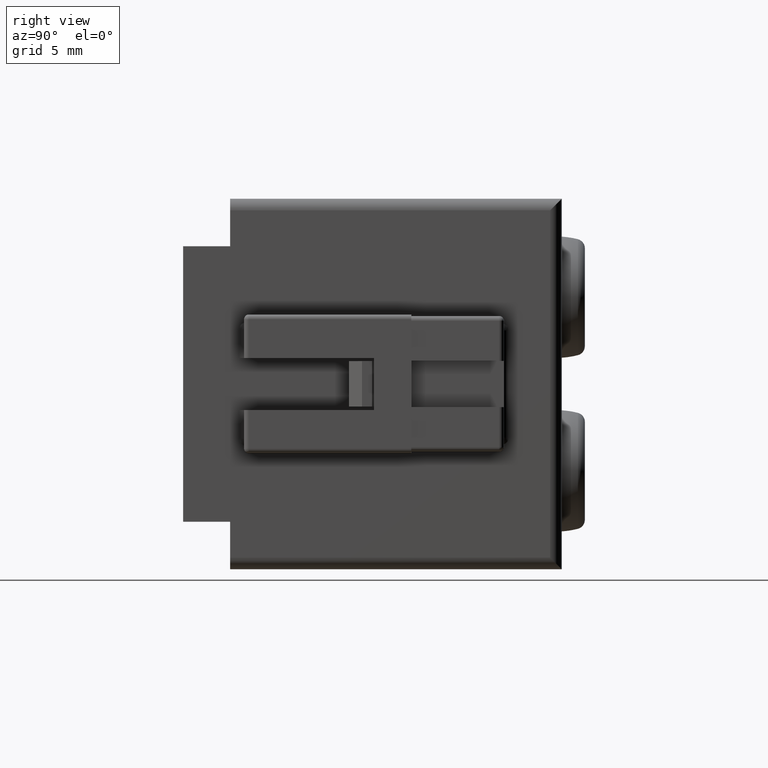
[diagram: clean part render]
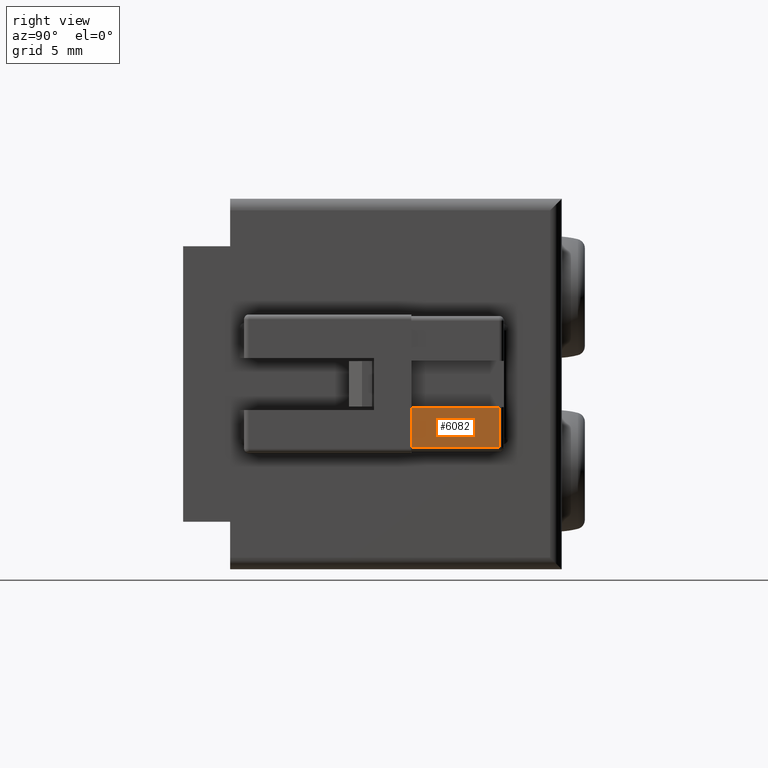
[diagram: same view with one face highlighted and labeled with its STEP entity id]
A machine part, right view. The second image highlights one B-rep face of the part: STEP entity #6082.
In plain terms, the highlighted planar face has unit normal (-1, 0, 0).
Its self-contained STEP definition (entity closure, byte-faithful):
#489 = VECTOR ( 'NONE', #3012, 1000.000000000000000 ) ;
#1009 = AXIS2_PLACEMENT_3D ( 'NONE', #7046, #7026, #7047 ) ;
#1131 = EDGE_CURVE ( 'NONE', #14549, #14533, #3009, .T. ) ;
#3009 = LINE ( 'NONE', #3011, #489 ) ;
#3011 = CARTESIAN_POINT ( 'NONE',  ( 30.10655536988765100, 46.84963753280949600, -12.90616625224570100 ) ) ;
#3012 = DIRECTION ( 'NONE',  ( 0.0000000000000000000, 1.000000000000000000, 2.793185475527755200E-014 ) ) ;
#4847 = VECTOR ( 'NONE', #13942, 1000.000000000000000 ) ;
#4862 = VECTOR ( 'NONE', #14043, 1000.000000000000000 ) ;
#4882 = VECTOR ( 'NONE', #13990, 1000.000000000000000 ) ;
#6082 = ADVANCED_FACE ( 'NONE', ( #7033 ), #7037, .F. ) ;
#7026 = DIRECTION ( 'NONE',  ( -1.000000000000000000, 0.0000000000000000000, 0.0000000000000000000 ) ) ;
#7033 = FACE_OUTER_BOUND ( 'NONE', #12475, .T. ) ;
#7037 = PLANE ( 'NONE',  #1009 ) ;
#7046 = CARTESIAN_POINT ( 'NONE',  ( 30.10655536988765100, 46.84963753280960200, -14.34181132681393900 ) ) ;
#7047 = DIRECTION ( 'NONE',  ( 0.0000000000000000000, 2.094888803305880000E-014, -1.000000000000000000 ) ) ;
#12475 = EDGE_LOOP ( 'NONE', ( #20330, #20336, #20288, #20127 ) ) ;
#13929 = LINE ( 'NONE', #13933, #4847 ) ;
#13933 = CARTESIAN_POINT ( 'NONE',  ( 30.10655536988765100, 40.64963753280950000, -11.17283801961442100 ) ) ;
#13942 = DIRECTION ( 'NONE',  ( 0.0000000000000000000, -2.793185071074504800E-014, 1.000000000000000000 ) ) ;
#13956 = LINE ( 'NONE', #13976, #4882 ) ;
#13976 = CARTESIAN_POINT ( 'NONE',  ( 30.10655536988765100, 46.84963753280949600, -11.17283801961426100 ) ) ;
#13990 = DIRECTION ( 'NONE',  ( 0.0000000000000000000, -1.000000000000000000, -2.793185071074504800E-014 ) ) ;
#14023 = LINE ( 'NONE', #14032, #4862 ) ;
#14032 = CARTESIAN_POINT ( 'NONE',  ( 30.10655536988765100, 36.84963753280954500, -14.34181132681422000 ) ) ;
#14043 = DIRECTION ( 'NONE',  ( 0.0000000000000000000, 2.760654054613580100E-014, -1.000000000000000000 ) ) ;
#14522 = VERTEX_POINT ( 'NONE', #17602 ) ;
#14533 = VERTEX_POINT ( 'NONE', #17612 ) ;
#14549 = VERTEX_POINT ( 'NONE', #17631 ) ;
#14555 = VERTEX_POINT ( 'NONE', #17604 ) ;
#17602 = CARTESIAN_POINT ( 'NONE',  ( 30.10655536988765100, 36.84963753280829500, -11.17283801961442100 ) ) ;
#17604 = CARTESIAN_POINT ( 'NONE',  ( 30.10655536988765100, 40.64963753280950000, -11.17283801961442100 ) ) ;
#17612 = CARTESIAN_POINT ( 'NONE',  ( 30.10655536988765100, 40.64963753280955000, -12.90616625224586000 ) ) ;
#17631 = CARTESIAN_POINT ( 'NONE',  ( 30.10655536988764800, 36.84963753280829500, -12.90616625224591900 ) ) ;
#20034 = EDGE_CURVE ( 'NONE', #14533, #14555, #13929, .T. ) ;
#20045 = EDGE_CURVE ( 'NONE', #14555, #14522, #13956, .T. ) ;
#20060 = EDGE_CURVE ( 'NONE', #14522, #14549, #14023, .T. ) ;
#20127 = ORIENTED_EDGE ( 'NONE', *, *, #20060, .T. ) ;
#20288 = ORIENTED_EDGE ( 'NONE', *, *, #20045, .T. ) ;
#20330 = ORIENTED_EDGE ( 'NONE', *, *, #1131, .T. ) ;
#20336 = ORIENTED_EDGE ( 'NONE', *, *, #20034, .T. ) ;